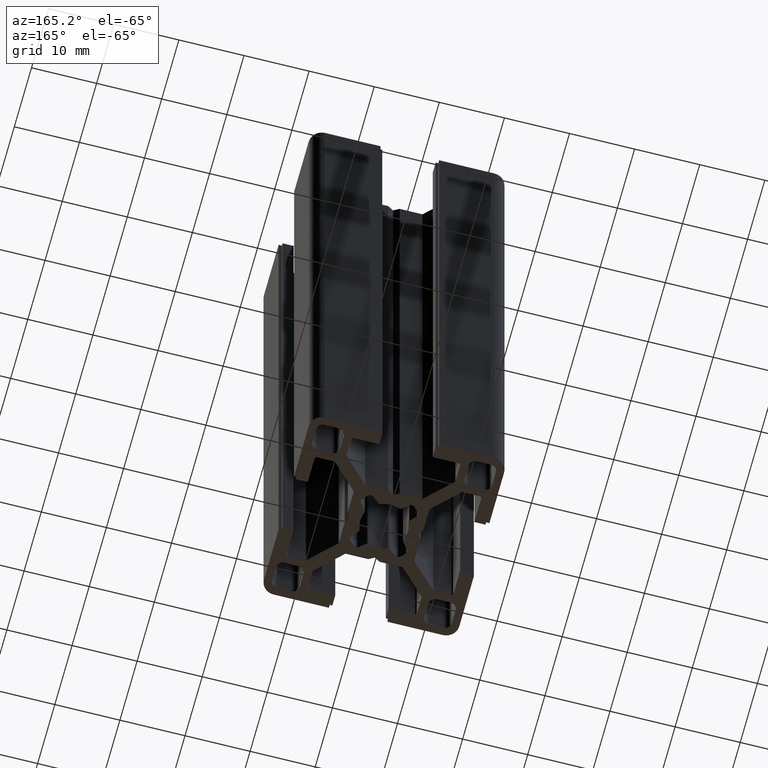
[diagram: clean part render]
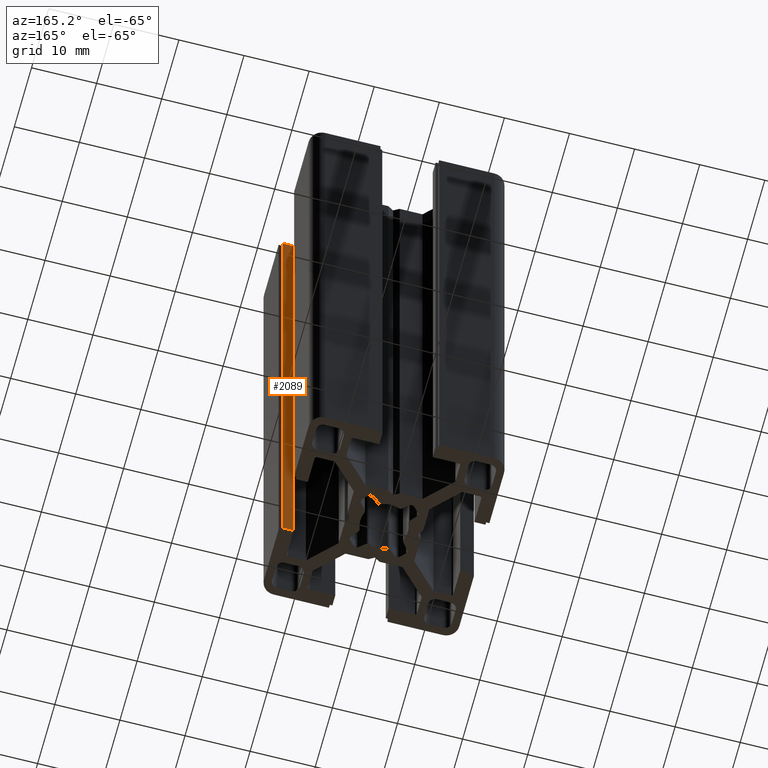
[diagram: same view with one face highlighted and labeled with its STEP entity id]
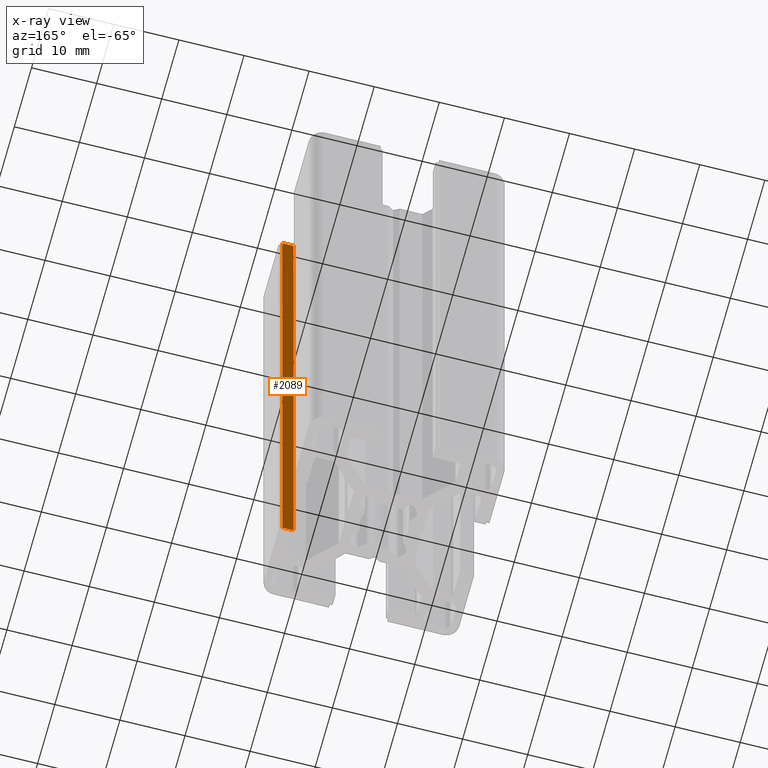
[diagram: x-ray of the same camera — body ghosted, the highlighted face saturated]
A machine part, auxiliary view. The second image highlights one B-rep face of the part: STEP entity #2089.
The next image is the same camera in x-ray: the body ghosted, the highlighted face saturated — about 0% of this face is hidden behind the body in this view.
In plain terms, the highlighted planar face has unit normal (0, -1, 0).
Its self-contained STEP definition (entity closure, byte-faithful):
#620 = CARTESIAN_POINT ( 'NONE',  ( 12.80000000000000100, -4.099999999999999600, 0.0000000000000000000 ) ) ;
#624 = CARTESIAN_POINT ( 'NONE',  ( 14.50000000000000000, -4.099999999999998800, 0.0000000000000000000 ) ) ;
#674 = EDGE_CURVE ( 'NONE', #1164, #1230, #2727, .T. ) ;
#679 = DIRECTION ( 'NONE',  ( -1.000000000000000000, -5.102127870520021000E-016, 0.0000000000000000000 ) ) ;
#680 = VECTOR ( 'NONE', #679, 1000.000000000000000 ) ;
#682 = LINE ( 'NONE', #693, #680 ) ;
#693 = CARTESIAN_POINT ( 'NONE',  ( 14.50000000000000000, -4.099999999999998800, 0.0000000000000000000 ) ) ;
#1164 = VERTEX_POINT ( 'NONE', #3072 ) ;
#1230 = VERTEX_POINT ( 'NONE', #3418 ) ;
#2036 = EDGE_LOOP ( 'NONE', ( #2069, #2071, #2077, #2074 ) ) ;
#2069 = ORIENTED_EDGE ( 'NONE', *, *, #5253, .T. ) ;
#2071 = ORIENTED_EDGE ( 'NONE', *, *, #2073, .F. ) ;
#2073 = EDGE_CURVE ( 'NONE', #1230, #5226, #4789, .T. ) ;
#2074 = ORIENTED_EDGE ( 'NONE', *, *, #2086, .T. ) ;
#2077 = ORIENTED_EDGE ( 'NONE', *, *, #674, .F. ) ;
#2086 = EDGE_CURVE ( 'NONE', #1164, #5225, #4819, .T. ) ;
#2089 = ADVANCED_FACE ( 'NONE', ( #4777 ), #4813, .F. ) ;
#2724 = DIRECTION ( 'NONE',  ( -1.000000000000000000, -5.102127870520021000E-016, 0.0000000000000000000 ) ) ;
#2725 = VECTOR ( 'NONE', #2724, 1000.000000000000000 ) ;
#2726 = CARTESIAN_POINT ( 'NONE',  ( 14.50000000000000000, -4.099999999999998800, 100.0000000000000000 ) ) ;
#2727 = LINE ( 'NONE', #2726, #2725 ) ;
#3072 = CARTESIAN_POINT ( 'NONE',  ( 14.50000000000000000, -4.099999999999998800, 100.0000000000000000 ) ) ;
#3418 = CARTESIAN_POINT ( 'NONE',  ( 12.80000000000000100, -4.099999999999999600, 100.0000000000000000 ) ) ;
#4777 = FACE_OUTER_BOUND ( 'NONE', #2036, .T. ) ;
#4779 = DIRECTION ( 'NONE',  ( -0.0000000000000000000, -0.0000000000000000000, -1.000000000000000000 ) ) ;
#4780 = VECTOR ( 'NONE', #4779, 1000.000000000000000 ) ;
#4789 = LINE ( 'NONE', #4794, #4780 ) ;
#4794 = CARTESIAN_POINT ( 'NONE',  ( 12.80000000000000100, -4.099999999999999600, 100.0000000000000000 ) ) ;
#4809 = DIRECTION ( 'NONE',  ( 1.000000000000000000, 5.102127870520021000E-016, 0.0000000000000000000 ) ) ;
#4810 = DIRECTION ( 'NONE',  ( 5.102127870520021000E-016, -1.000000000000000000, 0.0000000000000000000 ) ) ;
#4811 = CARTESIAN_POINT ( 'NONE',  ( 14.50000000000000000, -4.099999999999998800, 100.0000000000000000 ) ) ;
#4812 = AXIS2_PLACEMENT_3D ( 'NONE', #4811, #4810, #4809 ) ;
#4813 = PLANE ( 'NONE',  #4812 ) ;
#4816 = DIRECTION ( 'NONE',  ( -0.0000000000000000000, -0.0000000000000000000, -1.000000000000000000 ) ) ;
#4817 = VECTOR ( 'NONE', #4816, 1000.000000000000000 ) ;
#4818 = CARTESIAN_POINT ( 'NONE',  ( 14.50000000000000000, -4.099999999999998800, 100.0000000000000000 ) ) ;
#4819 = LINE ( 'NONE', #4818, #4817 ) ;
#5225 = VERTEX_POINT ( 'NONE', #624 ) ;
#5226 = VERTEX_POINT ( 'NONE', #620 ) ;
#5253 = EDGE_CURVE ( 'NONE', #5225, #5226, #682, .T. ) ;